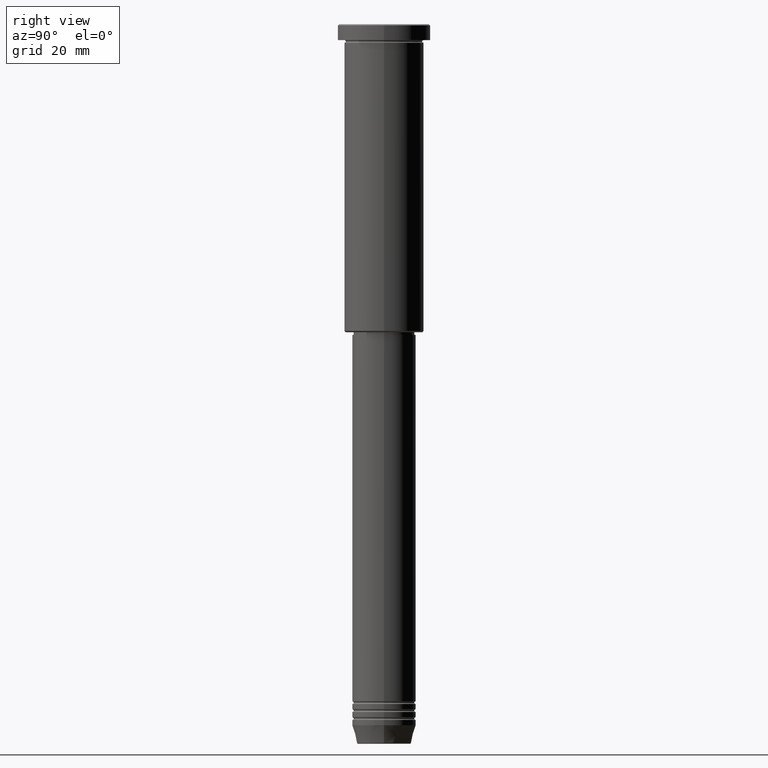
[diagram: clean part render]
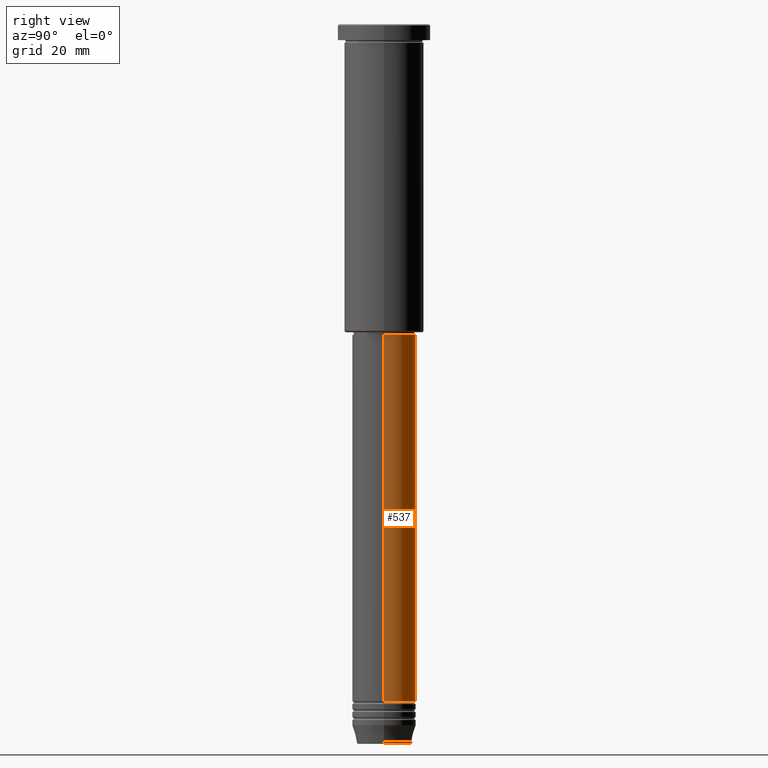
[diagram: same view with one face highlighted and labeled with its STEP entity id]
A machine part, right view. The second image highlights one B-rep face of the part: STEP entity #537.
In plain terms, the highlighted cylindrical surface (edge-blend (fillet) strip) has radius 12 mm, axis along (-0, -0, 1).
Its self-contained STEP definition (entity closure, byte-faithful):
#37 = CARTESIAN_POINT ( 'NONE',  ( -12.00000000000000000, 1.469576158976823947E-15, 0.000000000000000000 ) ) ;
#57 = ORIENTED_EDGE ( 'NONE', *, *, #586, .F. ) ;
#90 = DIRECTION ( 'NONE',  ( -0.000000000000000000, -0.000000000000000000, 1.000000000000000000 ) ) ;
#101 = EDGE_CURVE ( 'NONE', #848, #425, #1089, .T. ) ;
#283 = EDGE_CURVE ( 'NONE', #425, #833, #500, .T. ) ;
#295 = AXIS2_PLACEMENT_3D ( 'NONE', #617, #633, #519 ) ;
#301 = DIRECTION ( 'NONE',  ( 1.000000000000000000, 0.000000000000000000, 0.000000000000000000 ) ) ;
#369 = CIRCLE ( 'NONE', #295, 12.00000000000000000 ) ;
#414 = DIRECTION ( 'NONE',  ( -0.000000000000000000, -0.000000000000000000, 1.000000000000000000 ) ) ;
#425 = VERTEX_POINT ( 'NONE', #511 ) ;
#441 = CARTESIAN_POINT ( 'NONE',  ( 0.000000000000000000, 0.000000000000000000, -255.0000000000000000 ) ) ;
#472 = EDGE_CURVE ( 'NONE', #1158, #833, #369, .T. ) ;
#500 = LINE ( 'NONE', #37, #841 ) ;
#511 = CARTESIAN_POINT ( 'NONE',  ( -12.00000000000000000, 1.469576158976823947E-15, -255.0000000000000000 ) ) ;
#519 = DIRECTION ( 'NONE',  ( 1.000000000000000000, 0.000000000000000000, 0.000000000000000000 ) ) ;
#537 = ADVANCED_FACE ( 'NONE', ( #927 ), #546, .T. ) ;
#546 = CYLINDRICAL_SURFACE ( 'NONE', #787, 12.00000000000000000 ) ;
#563 = CARTESIAN_POINT ( 'NONE',  ( 0.000000000000000000, 0.000000000000000000, 0.000000000000000000 ) ) ;
#566 = CARTESIAN_POINT ( 'NONE',  ( 12.00000000000000000, 0.000000000000000000, -117.0000000000000000 ) ) ;
#586 = EDGE_CURVE ( 'NONE', #848, #1158, #835, .T. ) ;
#617 = CARTESIAN_POINT ( 'NONE',  ( 0.000000000000000000, 0.000000000000000000, -117.0000000000000000 ) ) ;
#633 = DIRECTION ( 'NONE',  ( -0.000000000000000000, -0.000000000000000000, 1.000000000000000000 ) ) ;
#651 = AXIS2_PLACEMENT_3D ( 'NONE', #441, #90, #810 ) ;
#757 = ORIENTED_EDGE ( 'NONE', *, *, #101, .T. ) ;
#787 = AXIS2_PLACEMENT_3D ( 'NONE', #563, #1098, #301 ) ;
#810 = DIRECTION ( 'NONE',  ( 1.000000000000000000, 0.000000000000000000, 0.000000000000000000 ) ) ;
#833 = VERTEX_POINT ( 'NONE', #873 ) ;
#835 = LINE ( 'NONE', #910, #1055 ) ;
#841 = VECTOR ( 'NONE', #414, 1000.000000000000000 ) ;
#848 = VERTEX_POINT ( 'NONE', #1069 ) ;
#872 = EDGE_LOOP ( 'NONE', ( #757, #875, #1060, #57 ) ) ;
#873 = CARTESIAN_POINT ( 'NONE',  ( -12.00000000000000000, 1.469576158976823947E-15, -117.0000000000000000 ) ) ;
#875 = ORIENTED_EDGE ( 'NONE', *, *, #283, .T. ) ;
#910 = CARTESIAN_POINT ( 'NONE',  ( 12.00000000000000000, 0.000000000000000000, 0.000000000000000000 ) ) ;
#927 = FACE_OUTER_BOUND ( 'NONE', #872, .T. ) ;
#1055 = VECTOR ( 'NONE', #1180, 1000.000000000000000 ) ;
#1060 = ORIENTED_EDGE ( 'NONE', *, *, #472, .F. ) ;
#1069 = CARTESIAN_POINT ( 'NONE',  ( 12.00000000000000000, 0.000000000000000000, -255.0000000000000000 ) ) ;
#1089 = CIRCLE ( 'NONE', #651, 12.00000000000000000 ) ;
#1098 = DIRECTION ( 'NONE',  ( -0.000000000000000000, -0.000000000000000000, 1.000000000000000000 ) ) ;
#1158 = VERTEX_POINT ( 'NONE', #566 ) ;
#1180 = DIRECTION ( 'NONE',  ( -0.000000000000000000, -0.000000000000000000, 1.000000000000000000 ) ) ;